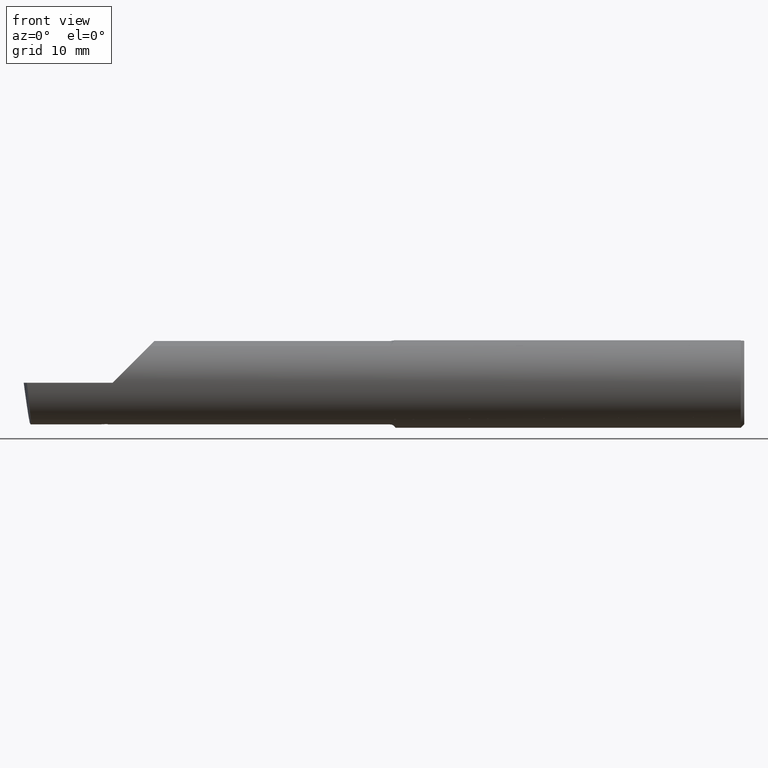
[diagram: clean part render]
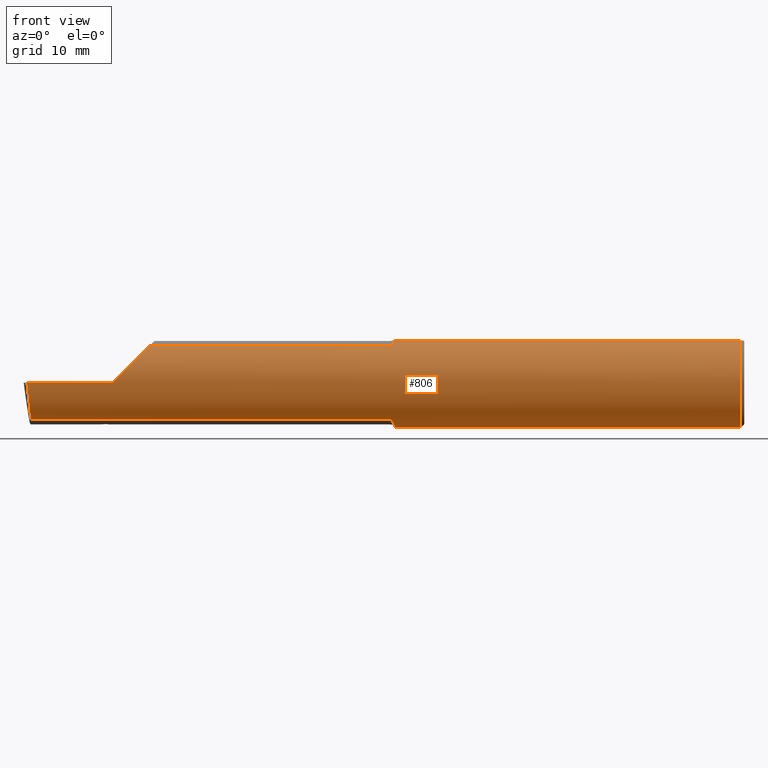
[diagram: same view with one face highlighted and labeled with its STEP entity id]
A machine part, front view. The second image highlights one B-rep face of the part: STEP entity #806.
In plain terms, the highlighted cylindrical surface (partial cylindrical patch) has radius 4.7587 mm, axis along (1, -0, -0).
Its self-contained STEP definition (entity closure, byte-faithful):
#4 = VERTEX_POINT ( 'NONE', #611 ) ;
#11 = EDGE_CURVE ( 'NONE', #226, #4, #114, .T. ) ;
#12 = CARTESIAN_POINT ( 'NONE',  ( -1.456973559773167448, -0.05611254490776137333, -0.1789163321174483956 ) ) ;
#13 = CARTESIAN_POINT ( 'NONE',  ( -1.451877184496278561, 5.346707327247464941E-17, -0.1873499999999999888 ) ) ;
#15 = FACE_OUTER_BOUND ( 'NONE', #546, .T. ) ;
#19 = CARTESIAN_POINT ( 'NONE',  ( -0.01500000000000298143, 0.000000000000000000, -0.1873499999999999888 ) ) ;
#33 = CARTESIAN_POINT ( 'NONE',  ( -1.451877184496278561, 5.346707327247464941E-17, -0.1873499999999999888 ) ) ;
#38 = CARTESIAN_POINT ( 'NONE',  ( -1.460884246882312887, -0.07961094080654303184, 0.1698357184336610481 ) ) ;
#41 = EDGE_CURVE ( 'NONE', #4, #281, #890, .T. ) ;
#48 = VERTEX_POINT ( 'NONE', #700 ) ;
#51 = CARTESIAN_POINT ( 'NONE',  ( -1.472773221950631095, -0.1075385277173805804, 0.1534150210603234810 ) ) ;
#61 = CARTESIAN_POINT ( 'NONE',  ( -0.01500000000000298143, 0.000000000000000000, 0.000000000000000000 ) ) ;
#63 = ORIENTED_EDGE ( 'NONE', *, *, #109, .T. ) ;
#79 = CARTESIAN_POINT ( 'NONE',  ( -1.473990841715212996, -0.1081096153846148461, -0.1530108936036602696 ) ) ;
#94 = DIRECTION ( 'NONE',  ( -1.000000000000000000, 0.000000000000000000, 0.000000000000000000 ) ) ;
#98 = CARTESIAN_POINT ( 'NONE',  ( -1.452976572137598676, -0.01744685047681176007, -0.1867357032804827233 ) ) ;
#109 = EDGE_CURVE ( 'NONE', #675, #48, #509, .T. ) ;
#114 = CIRCLE ( 'NONE', #616, 0.1873499999999999888 ) ;
#117 = VERTEX_POINT ( 'NONE', #13 ) ;
#120 = CARTESIAN_POINT ( 'NONE',  ( -1.457967682101993345, -0.06250000000000000000, 0.1766175883087504339 ) ) ;
#123 = CARTESIAN_POINT ( 'NONE',  ( -1.457967682101993345, -0.06250000000000000000, 0.1766175883087504339 ) ) ;
#125 = VERTEX_POINT ( 'NONE', #150 ) ;
#134 = DIRECTION ( 'NONE',  ( 1.000000000000000000, -0.000000000000000000, -0.000000000000000000 ) ) ;
#138 = DIRECTION ( 'NONE',  ( 0.000000000000000000, 0.000000000000000000, -1.000000000000000000 ) ) ;
#146 = DIRECTION ( 'NONE',  ( -1.000000000000000000, 0.000000000000000000, 0.000000000000000000 ) ) ;
#150 = CARTESIAN_POINT ( 'NONE',  ( -2.630000000000001670, -0.1873499999999999888, 3.826894855694929702E-18 ) ) ;
#154 = CARTESIAN_POINT ( 'NONE',  ( -1.453714973573323466, -0.02600000000000000921, -0.1855371189277228716 ) ) ;
#165 = CARTESIAN_POINT ( 'NONE',  ( -1.453714973573323466, -0.02600000000000000921, -0.1855371189277228716 ) ) ;
#166 = ORIENTED_EDGE ( 'NONE', *, *, #334, .T. ) ;
#195 = CARTESIAN_POINT ( 'NONE',  ( -2.630000000000001670, -0.1873499999999999888, 3.826894855694929702E-18 ) ) ;
#206 = B_SPLINE_CURVE_WITH_KNOTS ( 'NONE', 3,
 ( #120, #596, #38, #461, #516, #313, #598, #592, #796, #51, #677, #395 ),
 .UNSPECIFIED., .F., .F.,
 ( 4, 2, 2, 2, 2, 4 ),
 ( 6.052127593279596763E-07, 0.0007095659345339961959, 0.001064046295421333362, 0.001241286475864999180, 0.001329906566086831764, 0.001418526656308664565 ),
 .UNSPECIFIED. ) ;
#214 = CARTESIAN_POINT ( 'NONE',  ( -1.470962250959480411, -0.1059577229162207146, -0.1545110620167398086 ) ) ;
#222 = CARTESIAN_POINT ( 'NONE',  ( -1.458043122508910994, -0.06351921404920812808, -0.1764218323618861883 ) ) ;
#226 = VERTEX_POINT ( 'NONE', #19 ) ;
#232 = CARTESIAN_POINT ( 'NONE',  ( -1.465102689005152836, -0.09457517144669681797, -0.1617708990962193616 ) ) ;
#233 = EDGE_CURVE ( 'NONE', #125, #463, #723, .T. ) ;
#236 = EDGE_CURVE ( 'NONE', #561, #117, #719, .T. ) ;
#244 = VERTEX_POINT ( 'NONE', #654 ) ;
#259 = ORIENTED_EDGE ( 'NONE', *, *, #236, .T. ) ;
#260 = VECTOR ( 'NONE', #134, 39.37007874015748143 ) ;
#266 = LINE ( 'NONE', #681, #260 ) ;
#275 = ORIENTED_EDGE ( 'NONE', *, *, #41, .T. ) ;
#281 = VERTEX_POINT ( 'NONE', #123 ) ;
#285 = ORIENTED_EDGE ( 'NONE', *, *, #442, .T. ) ;
#295 = ORIENTED_EDGE ( 'NONE', *, *, #233, .T. ) ;
#313 = CARTESIAN_POINT ( 'NONE',  ( -1.467781332027255914, -0.1010801460385803430, 0.1577580110644236921 ) ) ;
#318 =( BOUNDED_CURVE ( )  B_SPLINE_CURVE ( 3, ( #671, #867, #674, #323 ),
 .UNSPECIFIED., .F., .T. ) 
 B_SPLINE_CURVE_WITH_KNOTS ( ( 4, 4 ),
 ( 4.987330662103041767, 5.943019574253066928 ),
 .UNSPECIFIED. ) 
 CURVE ( )  GEOMETRIC_REPRESENTATION_ITEM ( )  RATIONAL_B_SPLINE_CURVE ( ( 1.000000000000000000, 0.9253254977684380878, 0.9253254977684380878, 1.000000000000000000 ) ) 
 REPRESENTATION_ITEM ( '' )  );
#323 = CARTESIAN_POINT ( 'NONE',  ( -2.971021954143098220, -0.1081096153846145408, -0.1530108936036604916 ) ) ;
#331 = EDGE_CURVE ( 'NONE', #463, #244, #318, .T. ) ;
#334 = EDGE_CURVE ( 'NONE', #281, #675, #206, .T. ) ;
#337 = CARTESIAN_POINT ( 'NONE',  ( -2.512807819182183433, -0.1588049511472809372, 0.1171921808178171820 ) ) ;
#369 = CARTESIAN_POINT ( 'NONE',  ( -1.462088808768002623, -0.08468039621818275464, -0.1672910947738005527 ) ) ;
#378 = CARTESIAN_POINT ( 'NONE',  ( -1.452372313802065884, -0.008763004446718142965, -0.1873499999999999888 ) ) ;
#395 = CARTESIAN_POINT ( 'NONE',  ( -1.474999999999999867, -0.1081096153846146657, 0.1530108936036603806 ) ) ;
#408 = CARTESIAN_POINT ( 'NONE',  ( -3.000000000000000444, -0.06250000000000001388, 0.1766175883087524878 ) ) ;
#409 = EDGE_CURVE ( 'NONE', #244, #494, #266, .T. ) ;
#426 = EDGE_CURVE ( 'NONE', #117, #226, #619, .T. ) ;
#429 = ORIENTED_EDGE ( 'NONE', *, *, #331, .T. ) ;
#433 = CARTESIAN_POINT ( 'NONE',  ( -2.062500000000000000, -0.1081096153846145408, 0.1530108936036604916 ) ) ;
#442 = EDGE_CURVE ( 'NONE', #48, #125, #784, .T. ) ;
#443 = CARTESIAN_POINT ( 'NONE',  ( -2.455000000000000071, -0.1873499999999999888, 3.826894855694929702E-18 ) ) ;
#461 = CARTESIAN_POINT ( 'NONE',  ( -1.464131307662216885, -0.09162079138871485895, 0.1634813926668743644 ) ) ;
#463 = VERTEX_POINT ( 'NONE', #483 ) ;
#480 = DIRECTION ( 'NONE',  ( 1.000000000000000000, -0.000000000000000000, -0.000000000000000000 ) ) ;
#481 = AXIS2_PLACEMENT_3D ( 'NONE', #773, #698, #138 ) ;
#483 = CARTESIAN_POINT ( 'NONE',  ( -2.987074409200135783, -0.1873499999999999888, 3.826894855694929702E-18 ) ) ;
#494 = VERTEX_POINT ( 'NONE', #822 ) ;
#501 = VECTOR ( 'NONE', #94, 39.37007874015748143 ) ;
#509 = LINE ( 'NONE', #433, #501 ) ;
#512 = CARTESIAN_POINT ( 'NONE',  ( -1.466238116357581278, -0.09782808942489364112, -0.1598214121839316715 ) ) ;
#516 = CARTESIAN_POINT ( 'NONE',  ( -1.465348092364184174, -0.09552632662398691243, 0.1612259201693727328 ) ) ;
#534 = VECTOR ( 'NONE', #788, 39.37007874015748143 ) ;
#546 = EDGE_LOOP ( 'NONE', ( #585, #259, #778, #667, #275, #166, #63, #285, #295, #429, #809 ) ) ;
#561 = VERTEX_POINT ( 'NONE', #702 ) ;
#563 = VECTOR ( 'NONE', #480, 39.37007874015748143 ) ;
#567 = CYLINDRICAL_SURFACE ( 'NONE', #481, 0.1873499999999999888 ) ;
#571 = EDGE_CURVE ( 'NONE', #494, #561, #726, .T. ) ;
#583 = CARTESIAN_POINT ( 'NONE',  ( -1.474999999999999867, -0.1081096153846146657, 0.1530108936036603806 ) ) ;
#585 = ORIENTED_EDGE ( 'NONE', *, *, #571, .T. ) ;
#592 = CARTESIAN_POINT ( 'NONE',  ( -1.470462886440571326, -0.1053834917856772690, 0.1549043010424866751 ) ) ;
#596 = CARTESIAN_POINT ( 'NONE',  ( -1.459313725646238291, -0.07118995096372772446, 0.1735424589264978612 ) ) ;
#598 = CARTESIAN_POINT ( 'NONE',  ( -1.468689619503644739, -0.1028936997100529382, 0.1565787672374086836 ) ) ;
#611 = CARTESIAN_POINT ( 'NONE',  ( -0.01500000000000269347, -0.06250000000000000000, 0.1766175883087527931 ) ) ;
#616 = AXIS2_PLACEMENT_3D ( 'NONE', #61, #146, #834 ) ;
#619 = LINE ( 'NONE', #826, #563 ) ;
#621 = DIRECTION ( 'NONE',  ( -1.000000000000000000, 0.000000000000000000, 0.000000000000000000 ) ) ;
#654 = CARTESIAN_POINT ( 'NONE',  ( -2.971021954143098220, -0.1081096153846145408, -0.1530108936036604916 ) ) ;
#667 = ORIENTED_EDGE ( 'NONE', *, *, #11, .T. ) ;
#671 = CARTESIAN_POINT ( 'NONE',  ( -2.987074409200135783, -0.1873499999999999888, 3.826894855694929702E-18 ) ) ;
#674 = CARTESIAN_POINT ( 'NONE',  ( -2.973665653534177444, -0.1588049511472861830, -0.1171921808178068153 ) ) ;
#675 = VERTEX_POINT ( 'NONE', #583 ) ;
#677 = CARTESIAN_POINT ( 'NONE',  ( -1.473816888183884455, -0.1081096153861715037, 0.1530108936025607325 ) ) ;
#681 = CARTESIAN_POINT ( 'NONE',  ( -2.062500000000000000, -0.1081096153846145408, -0.1530108936036604916 ) ) ;
#688 = CARTESIAN_POINT ( 'NONE',  ( -2.476989106396330964, -0.1081096153846006908, 0.1530108936036691236 ) ) ;
#694 = CARTESIAN_POINT ( 'NONE',  ( -2.567927483910138697, -0.1873499999999999888, 0.06207251608986254915 ) ) ;
#698 = DIRECTION ( 'NONE',  ( 1.000000000000000000, -0.000000000000000000, -0.000000000000000000 ) ) ;
#700 = CARTESIAN_POINT ( 'NONE',  ( -2.476989106396330964, -0.1081096153846006908, 0.1530108936036691236 ) ) ;
#702 = CARTESIAN_POINT ( 'NONE',  ( -1.453714973573323466, -0.02600000000000000921, -0.1855371189277228716 ) ) ;
#706 = CARTESIAN_POINT ( 'NONE',  ( -1.474999999999999867, -0.1081096153846146102, -0.1530108936036604361 ) ) ;
#710 = CARTESIAN_POINT ( 'NONE',  ( -1.469318389560258842, -0.1039040847158818615, -0.1559060710937212879 ) ) ;
#714 = CARTESIAN_POINT ( 'NONE',  ( -1.473069605713903885, -0.1076871372616755307, -0.1533099330047339726 ) ) ;
#719 = B_SPLINE_CURVE_WITH_KNOTS ( 'NONE', 3,
 ( #165, #98, #378, #33 ),
 .UNSPECIFIED., .F., .F.,
 ( 4, 4 ),
 ( 0.002418984694691949690, 0.003095677237903201717 ),
 .UNSPECIFIED. ) ;
#723 = LINE ( 'NONE', #443, #534 ) ;
#726 = B_SPLINE_CURVE_WITH_KNOTS ( 'NONE', 3,
 ( #706, #79, #714, #839, #214, #710, #851, #512, #232, #369, #854, #222, #12, #791, #781, #154 ),
 .UNSPECIFIED., .F., .F.,
 ( 4, 2, 2, 2, 2, 2, 2, 4 ),
 ( 1.965436276602616395E-07, 7.578367334842365231E-05, 0.0001513708030691865447, 0.0003025450625107017314, 0.0006048935813937403446, 0.001209590619159810632, 0.001814287656925879944, 0.002418984694691949690 ),
 .UNSPECIFIED. ) ;
#773 = CARTESIAN_POINT ( 'NONE',  ( -3.000000000000000444, 0.000000000000000000, 0.000000000000000000 ) ) ;
#778 = ORIENTED_EDGE ( 'NONE', *, *, #426, .T. ) ;
#781 = CARTESIAN_POINT ( 'NONE',  ( -1.454374814095197088, -0.03364315231803582940, -0.1844660558357798519 ) ) ;
#784 =( BOUNDED_CURVE ( )  B_SPLINE_CURVE ( 3, ( #688, #337, #694, #195 ),
 .UNSPECIFIED., .F., .F. ) 
 B_SPLINE_CURVE_WITH_KNOTS ( ( 4, 4 ),
 ( 0.6151074146447836899, 1.570796326794896558 ),
 .UNSPECIFIED. ) 
 CURVE ( )  GEOMETRIC_REPRESENTATION_ITEM ( )  RATIONAL_B_SPLINE_CURVE ( ( 1.000000000000000000, 0.9253254977684246541, 0.9253254977684246541, 1.000000000000000000 ) ) 
 REPRESENTATION_ITEM ( '' )  );
#788 = DIRECTION ( 'NONE',  ( -1.000000000000000000, -0.000000000000000000, -0.000000000000000000 ) ) ;
#791 = CARTESIAN_POINT ( 'NONE',  ( -1.455141548796872852, -0.04119594930418672696, -0.1829277599363024198 ) ) ;
#796 = CARTESIAN_POINT ( 'NONE',  ( -1.471124222591463360, -0.1061827455648160778, 0.1543564970284013182 ) ) ;
#806 = ADVANCED_FACE ( 'NONE', ( #15 ), #567, .T. ) ;
#809 = ORIENTED_EDGE ( 'NONE', *, *, #409, .T. ) ;
#822 = CARTESIAN_POINT ( 'NONE',  ( -1.474999999999999867, -0.1081096153846146102, -0.1530108936036604361 ) ) ;
#826 = CARTESIAN_POINT ( 'NONE',  ( -3.000000000000000444, 0.000000000000000000, -0.1873499999999999888 ) ) ;
#827 = VECTOR ( 'NONE', #621, 39.37007874015748143 ) ;
#834 = DIRECTION ( 'NONE',  ( 0.000000000000000000, 0.000000000000000000, 1.000000000000000000 ) ) ;
#839 = CARTESIAN_POINT ( 'NONE',  ( -1.471571954383048331, -0.1066080691550926191, -0.1540622428778509190 ) ) ;
#851 = CARTESIAN_POINT ( 'NONE',  ( -1.468488982761584349, -0.1024195539733059324, -0.1568870821870202437 ) ) ;
#854 = CARTESIAN_POINT ( 'NONE',  ( -1.460616930772027366, -0.07778708450845771283, -0.1706122005339261727 ) ) ;
#867 = CARTESIAN_POINT ( 'NONE',  ( -2.979448287175259225, -0.1873499999999999888, -0.06207251608985639435 ) ) ;
#890 = LINE ( 'NONE', #408, #827 ) ;